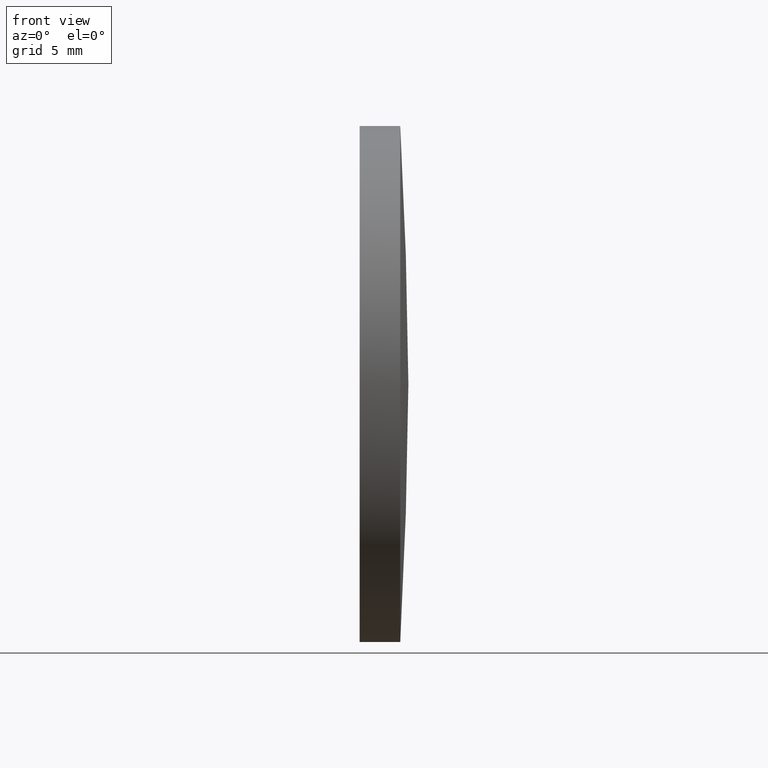
[diagram: clean part render]
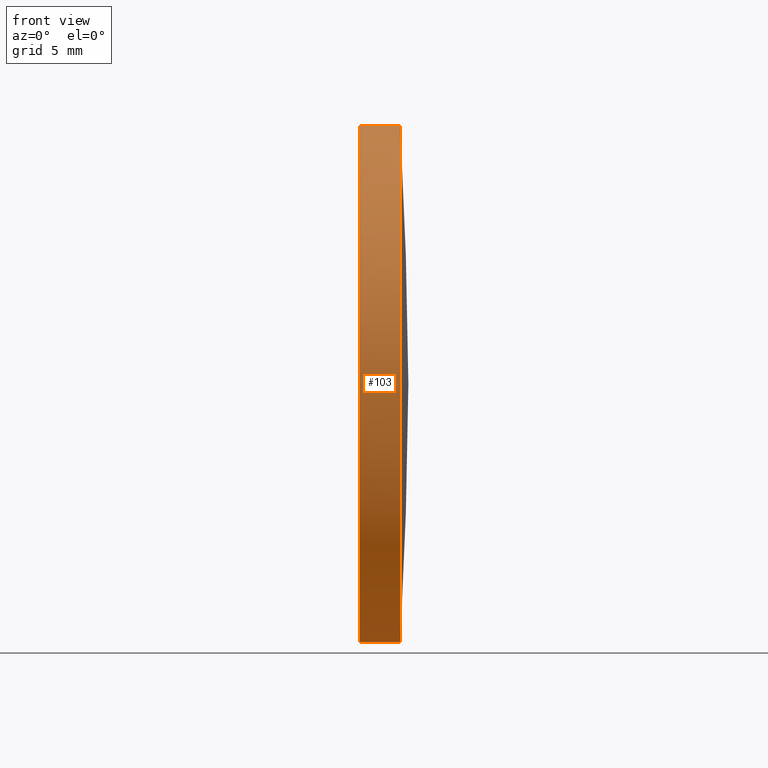
[diagram: same view with one face highlighted and labeled with its STEP entity id]
A machine part, front view. The second image highlights one B-rep face of the part: STEP entity #103.
In plain terms, the highlighted cylindrical surface (partial cylindrical patch) has radius 12.7 mm, axis along (-1, -0, -0).
Its self-contained STEP definition (entity closure, byte-faithful):
#10 = FACE_OUTER_BOUND ( 'NONE', #38, .T. ) ;
#12 = CIRCLE ( 'NONE', #63, 12.69999999999998900 ) ;
#16 = CARTESIAN_POINT ( 'NONE',  ( 477.3220861786303400, 184.5773825551713100, -12.69999999999998900 ) ) ;
#22 = ORIENTED_EDGE ( 'NONE', *, *, #157, .T. ) ;
#28 = CARTESIAN_POINT ( 'NONE',  ( 479.3220861786303400, 184.5773825551713100, 0.0000000000000000000 ) ) ;
#36 = VECTOR ( 'NONE', #97, 1000.000000000000000 ) ;
#38 = EDGE_LOOP ( 'NONE', ( #75, #128, #174, #22, #87 ) ) ;
#39 = VERTEX_POINT ( 'NONE', #175 ) ;
#43 = EDGE_CURVE ( 'NONE', #39, #55, #12, .T. ) ;
#44 = DIRECTION ( 'NONE',  ( 0.0000000000000000000, 0.0000000000000000000, 1.000000000000000000 ) ) ;
#45 = CARTESIAN_POINT ( 'NONE',  ( 477.3220861786303400, 184.5773825551713100, 12.69999999999998900 ) ) ;
#48 = DIRECTION ( 'NONE',  ( -1.000000000000000000, -0.0000000000000000000, -0.0000000000000000000 ) ) ;
#50 = VERTEX_POINT ( 'NONE', #68 ) ;
#53 = EDGE_CURVE ( 'NONE', #50, #39, #83, .T. ) ;
#55 = VERTEX_POINT ( 'NONE', #113 ) ;
#56 = DIRECTION ( 'NONE',  ( -1.000000000000000000, -0.0000000000000000000, -0.0000000000000000000 ) ) ;
#62 = CYLINDRICAL_SURFACE ( 'NONE', #72, 12.69999999999998900 ) ;
#63 = AXIS2_PLACEMENT_3D ( 'NONE', #28, #89, #132 ) ;
#68 = CARTESIAN_POINT ( 'NONE',  ( 479.3220861786303400, 184.5773825551713100, -12.69999999999998900 ) ) ;
#72 = AXIS2_PLACEMENT_3D ( 'NONE', #159, #56, #88 ) ;
#75 = ORIENTED_EDGE ( 'NONE', *, *, #120, .F. ) ;
#79 = CIRCLE ( 'NONE', #167, 12.69999999999998900 ) ;
#80 = EDGE_CURVE ( 'NONE', #121, #107, #79, .T. ) ;
#83 = CIRCLE ( 'NONE', #170, 12.69999999999998900 ) ;
#85 = DIRECTION ( 'NONE',  ( -1.000000000000000000, -0.0000000000000000000, -0.0000000000000000000 ) ) ;
#87 = ORIENTED_EDGE ( 'NONE', *, *, #80, .F. ) ;
#88 = DIRECTION ( 'NONE',  ( 0.0000000000000000000, 0.0000000000000000000, 1.000000000000000000 ) ) ;
#89 = DIRECTION ( 'NONE',  ( -1.000000000000000000, -0.0000000000000000000, -0.0000000000000000000 ) ) ;
#97 = DIRECTION ( 'NONE',  ( -1.000000000000000000, -0.0000000000000000000, -0.0000000000000000000 ) ) ;
#101 = DIRECTION ( 'NONE',  ( -1.000000000000000000, -0.0000000000000000000, -0.0000000000000000000 ) ) ;
#103 = ADVANCED_FACE ( 'NONE', ( #10 ), #62, .T. ) ;
#107 = VERTEX_POINT ( 'NONE', #45 ) ;
#113 = CARTESIAN_POINT ( 'NONE',  ( 479.3220861786303400, 184.5773825551713100, 12.69999999999998900 ) ) ;
#120 = EDGE_CURVE ( 'NONE', #50, #121, #145, .T. ) ;
#121 = VERTEX_POINT ( 'NONE', #16 ) ;
#128 = ORIENTED_EDGE ( 'NONE', *, *, #53, .T. ) ;
#132 = DIRECTION ( 'NONE',  ( 0.0000000000000000000, 0.0000000000000000000, 1.000000000000000000 ) ) ;
#135 = CARTESIAN_POINT ( 'NONE',  ( 471.5838681429539700, 184.5773825551713100, -12.69999999999998900 ) ) ;
#140 = VECTOR ( 'NONE', #48, 1000.000000000000000 ) ;
#144 = CARTESIAN_POINT ( 'NONE',  ( 477.3220861786303400, 184.5773825551713100, 0.0000000000000000000 ) ) ;
#145 = LINE ( 'NONE', #135, #140 ) ;
#149 = CARTESIAN_POINT ( 'NONE',  ( 471.5838681429539700, 184.5773825551713100, 12.69999999999998900 ) ) ;
#157 = EDGE_CURVE ( 'NONE', #55, #107, #173, .T. ) ;
#159 = CARTESIAN_POINT ( 'NONE',  ( 471.5838681429539700, 184.5773825551713100, 0.0000000000000000000 ) ) ;
#167 = AXIS2_PLACEMENT_3D ( 'NONE', #144, #101, #44 ) ;
#170 = AXIS2_PLACEMENT_3D ( 'NONE', #172, #85, #177 ) ;
#172 = CARTESIAN_POINT ( 'NONE',  ( 479.3220861786303400, 184.5773825551713100, 0.0000000000000000000 ) ) ;
#173 = LINE ( 'NONE', #149, #36 ) ;
#174 = ORIENTED_EDGE ( 'NONE', *, *, #43, .T. ) ;
#175 = CARTESIAN_POINT ( 'NONE',  ( 479.3220861786303400, 171.8773825551711800, -1.555301434917129200E-015 ) ) ;
#177 = DIRECTION ( 'NONE',  ( 0.0000000000000000000, 0.0000000000000000000, 1.000000000000000000 ) ) ;